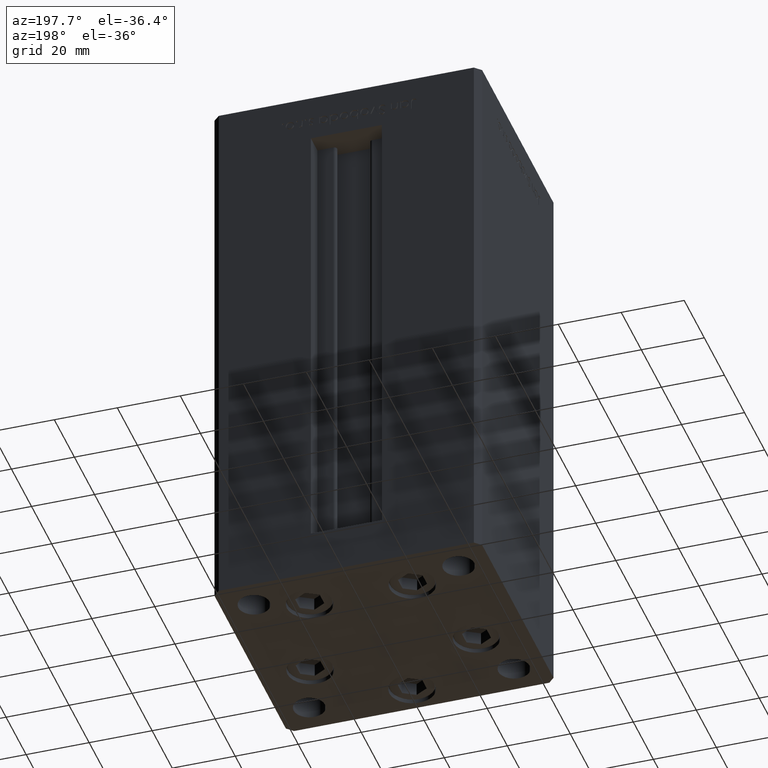
[diagram: clean part render]
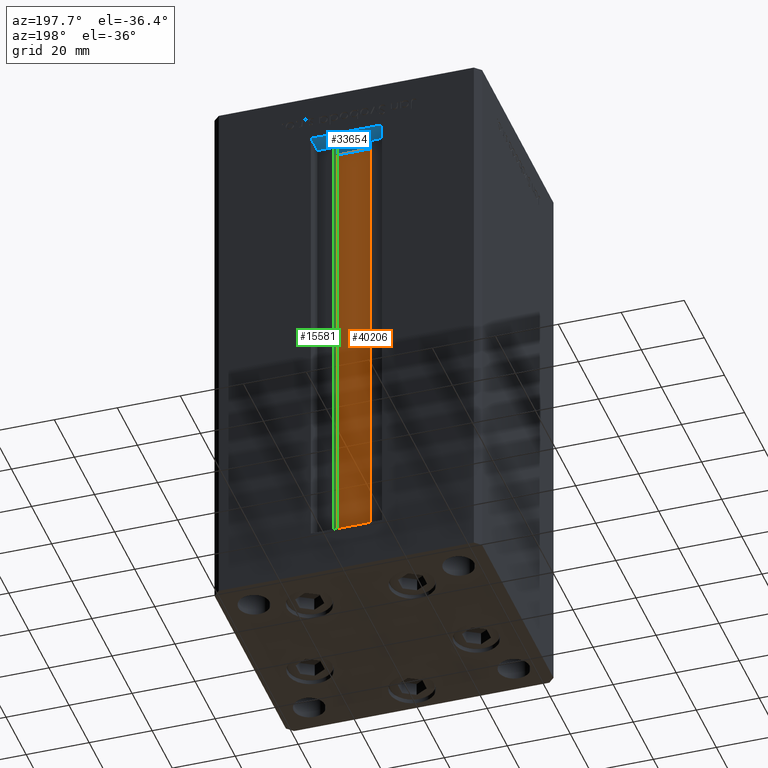
[diagram: same view with three faces highlighted in distinct colors, each labeled with its STEP entity id]
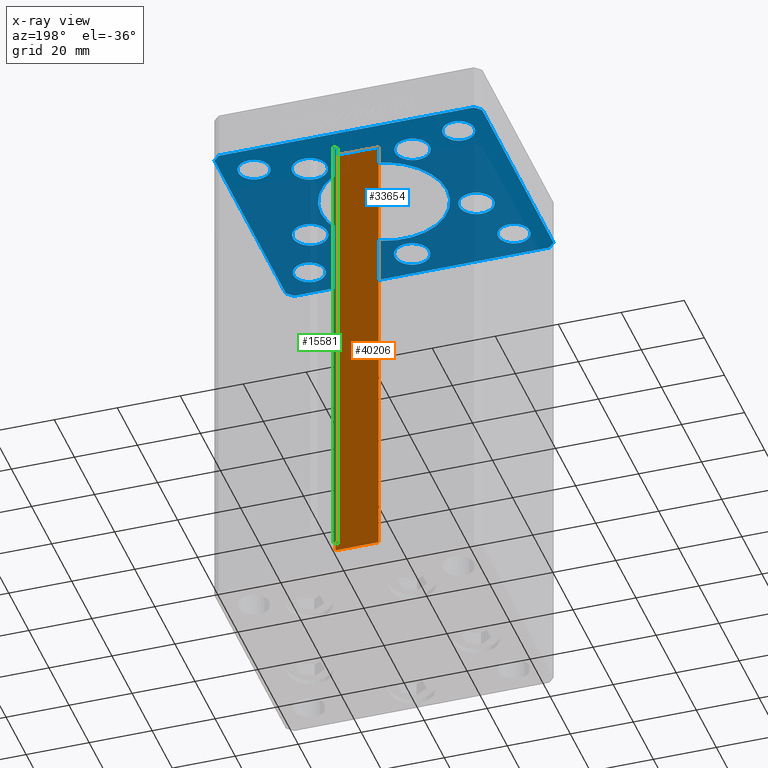
[diagram: x-ray of the same camera — body ghosted, the three highlighted faces saturated]
A machine part, auxiliary view with three faces highlighted in distinct colors.
The next image is the same camera in x-ray (body ghosted, the three faces saturated) — at least one of them is partly hidden behind the body in this view.
Their STEP definitions:

[orange] entity #40206 — the highlighted planar face has unit normal (0, -1, 0).
#550 = CARTESIAN_POINT ( 'NONE',  ( 6.876153656360465938, 26.99999999999986855, 0.000000000000000000 ) ) ;
#930 = DIRECTION ( 'NONE',  ( 0.000000000000000000, -1.000000000000000000, -0.000000000000000000 ) ) ;
#4932 = ORIENTED_EDGE ( 'NONE', *, *, #23216, .T. ) ;
#7508 = LINE ( 'NONE', #31757, #22491 ) ;
#7704 = CARTESIAN_POINT ( 'NONE',  ( -6.876153656360465938, 26.99999999999986855, 0.000000000000000000 ) ) ;
#8113 = EDGE_CURVE ( 'NONE', #16071, #21014, #12171, .T. ) ;
#9243 = EDGE_CURVE ( 'NONE', #10078, #24141, #51427, .T. ) ;
#9538 = EDGE_CURVE ( 'NONE', #21014, #10078, #10812, .T. ) ;
#10078 = VERTEX_POINT ( 'NONE', #38560 ) ;
#10812 = LINE ( 'NONE', #51403, #28955 ) ;
#12171 = LINE ( 'NONE', #550, #25555 ) ;
#14879 = EDGE_LOOP ( 'NONE', ( #35545, #25599, #4932, #32731 ) ) ;
#16071 = VERTEX_POINT ( 'NONE', #7704 ) ;
#20982 = FACE_OUTER_BOUND ( 'NONE', #14879, .T. ) ;
#21014 = VERTEX_POINT ( 'NONE', #33372 ) ;
#22491 = VECTOR ( 'NONE', #42590, 1000.000000000000000 ) ;
#23216 = EDGE_CURVE ( 'NONE', #16071, #24141, #7508, .T. ) ;
#23722 = AXIS2_PLACEMENT_3D ( 'NONE', #40217, #930, #28106 ) ;
#24141 = VERTEX_POINT ( 'NONE', #34369 ) ;
#25555 = VECTOR ( 'NONE', #27983, 1000.000000000000000 ) ;
#25599 = ORIENTED_EDGE ( 'NONE', *, *, #8113, .F. ) ;
#27983 = DIRECTION ( 'NONE',  ( 1.000000000000000000, -0.000000000000000000, -0.000000000000000000 ) ) ;
#28106 = DIRECTION ( 'NONE',  ( 0.000000000000000000, 0.000000000000000000, -1.000000000000000000 ) ) ;
#28955 = VECTOR ( 'NONE', #35835, 1000.000000000000000 ) ;
#29789 = VECTOR ( 'NONE', #39543, 1000.000000000000000 ) ;
#31757 = CARTESIAN_POINT ( 'NONE',  ( -6.876153656360465938, 26.99999999999986855, 0.000000000000000000 ) ) ;
#32731 = ORIENTED_EDGE ( 'NONE', *, *, #9243, .F. ) ;
#33372 = CARTESIAN_POINT ( 'NONE',  ( 6.876153656360465938, 26.99999999999986855, 0.000000000000000000 ) ) ;
#34369 = CARTESIAN_POINT ( 'NONE',  ( -6.876153656360465938, 26.99999999999986855, 148.5000000000000000 ) ) ;
#35545 = ORIENTED_EDGE ( 'NONE', *, *, #9538, .F. ) ;
#35835 = DIRECTION ( 'NONE',  ( -0.000000000000000000, -0.000000000000000000, 1.000000000000000000 ) ) ;
#37055 = PLANE ( 'NONE',  #23722 ) ;
#38560 = CARTESIAN_POINT ( 'NONE',  ( 6.876153656360465938, 26.99999999999986855, 148.5000000000000000 ) ) ;
#39543 = DIRECTION ( 'NONE',  ( -1.000000000000000000, 0.000000000000000000, 0.000000000000000000 ) ) ;
#40206 = ADVANCED_FACE ( 'NONE', ( #20982 ), #37055, .F. ) ;
#40217 = CARTESIAN_POINT ( 'NONE',  ( 6.876153656360465938, 26.99999999999986855, 0.000000000000000000 ) ) ;
#42590 = DIRECTION ( 'NONE',  ( -0.000000000000000000, -0.000000000000000000, 1.000000000000000000 ) ) ;
#43501 = CARTESIAN_POINT ( 'NONE',  ( 0.000000000000000000, 26.99999999999986855, 148.5000000000000000 ) ) ;
#51403 = CARTESIAN_POINT ( 'NONE',  ( 6.876153656360465938, 26.99999999999986855, 0.000000000000000000 ) ) ;
#51427 = LINE ( 'NONE', #43501, #29789 ) ;

[blue] entity #33654 — the highlighted planar face has unit normal (0, 0, 1).
#13 = AXIS2_PLACEMENT_3D ( 'NONE', #50209, #18817, #46498 ) ;
#153 = CARTESIAN_POINT ( 'NONE',  ( -42.50000000000000000, -35.50000000000004263, -15.00000000000000000 ) ) ;
#253 = DIRECTION ( 'NONE',  ( 1.000000000000000000, 1.370645709413773283E-15, 0.000000000000000000 ) ) ;
#422 = CARTESIAN_POINT ( 'NONE',  ( 16.32291334290544071, 22.74999999999999289, -15.00000000000000000 ) ) ;
#657 = CARTESIAN_POINT ( 'NONE',  ( 0.000000000000000000, -28.00000000000000000, -15.00000000000000000 ) ) ;
#835 = EDGE_CURVE ( 'NONE', #2533, #16558, #36095, .T. ) ;
#1100 = AXIS2_PLACEMENT_3D ( 'NONE', #9308, #29602, #41211 ) ;
#1209 = EDGE_CURVE ( 'NONE', #23057, #36490, #37950, .T. ) ;
#1481 = VERTEX_POINT ( 'NONE', #10970 ) ;
#1664 = FACE_BOUND ( 'NONE', #2701, .T. ) ;
#1911 = FACE_BOUND ( 'NONE', #32106, .T. ) ;
#2374 = DIRECTION ( 'NONE',  ( -0.000000000000000000, -0.000000000000000000, -1.000000000000000000 ) ) ;
#2502 = DIRECTION ( 'NONE',  ( 1.000000000000000000, 0.000000000000000000, 0.000000000000000000 ) ) ;
#2533 = VERTEX_POINT ( 'NONE', #16825 ) ;
#2544 = ORIENTED_EDGE ( 'NONE', *, *, #29915, .F. ) ;
#2701 = EDGE_LOOP ( 'NONE', ( #26460, #26804 ) ) ;
#2791 = EDGE_LOOP ( 'NONE', ( #47385, #8597, #2544, #4268, #19667, #31901, #44976, #11356 ) ) ;
#3222 = EDGE_LOOP ( 'NONE', ( #51093, #28229 ) ) ;
#4172 = EDGE_CURVE ( 'NONE', #46750, #14249, #41569, .T. ) ;
#4244 = VERTEX_POINT ( 'NONE', #43354 ) ;
#4268 = ORIENTED_EDGE ( 'NONE', *, *, #8573, .F. ) ;
#4516 = CARTESIAN_POINT ( 'NONE',  ( -27.50000000000000000, -27.50000000000000355, -15.00000000000000000 ) ) ;
#4657 = EDGE_CURVE ( 'NONE', #17549, #47558, #21368, .T. ) ;
#4860 = CARTESIAN_POINT ( 'NONE',  ( 26.39865316429777664, -9.333333333333330373, -15.00000000000000000 ) ) ;
#4938 = LINE ( 'NONE', #28413, #17782 ) ;
#5031 = VERTEX_POINT ( 'NONE', #20735 ) ;
#5037 = AXIS2_PLACEMENT_3D ( 'NONE', #8898, #24731, #24468 ) ;
#5263 = CARTESIAN_POINT ( 'NONE',  ( 5.500000000000000000, -28.00000000000000000, -15.00000000000000000 ) ) ;
#5291 = CARTESIAN_POINT ( 'NONE',  ( -31.89865316429777664, -9.333333333333330373, -15.00000000000000000 ) ) ;
#5357 = AXIS2_PLACEMENT_3D ( 'NONE', #36868, #37127, #33180 ) ;
#5433 = CIRCLE ( 'NONE', #9667, 5.000000000000004441 ) ;
#5651 = VECTOR ( 'NONE', #253, 1000.000000000000000 ) ;
#5867 = DIRECTION ( 'NONE',  ( 0.000000000000000000, 0.000000000000000000, 1.000000000000000000 ) ) ;
#6053 = VERTEX_POINT ( 'NONE', #17520 ) ;
#6165 = EDGE_CURVE ( 'NONE', #19796, #24030, #24642, .T. ) ;
#6302 = DIRECTION ( 'NONE',  ( 0.7071067811865487940, -0.7071067811865463515, 0.000000000000000000 ) ) ;
#6541 = VERTEX_POINT ( 'NONE', #15483 ) ;
#7176 = EDGE_CURVE ( 'NONE', #6541, #17480, #51626, .T. ) ;
#7419 = EDGE_LOOP ( 'NONE', ( #9795, #9439 ) ) ;
#7543 = ORIENTED_EDGE ( 'NONE', *, *, #4657, .F. ) ;
#7600 = EDGE_LOOP ( 'NONE', ( #46618, #48682 ) ) ;
#7911 = CIRCLE ( 'NONE', #5357, 5.000000000000004441 ) ;
#7985 = CARTESIAN_POINT ( 'NONE',  ( -27.50000000000000000, 27.50000000000000711, -15.00000000000000000 ) ) ;
#8573 = EDGE_CURVE ( 'NONE', #51888, #10069, #34678, .T. ) ;
#8597 = ORIENTED_EDGE ( 'NONE', *, *, #42476, .F. ) ;
#8898 = CARTESIAN_POINT ( 'NONE',  ( -32.50000000000000000, -27.50000000000000355, -15.00000000000000000 ) ) ;
#9060 = FACE_BOUND ( 'NONE', #7419, .T. ) ;
#9102 = CARTESIAN_POINT ( 'NONE',  ( 20.00000000000000000, 0.000000000000000000, -15.00000000000000000 ) ) ;
#9200 = VERTEX_POINT ( 'NONE', #5291 ) ;
#9308 = CARTESIAN_POINT ( 'NONE',  ( -32.50000000000000000, -27.50000000000000355, -15.00000000000000000 ) ) ;
#9439 = ORIENTED_EDGE ( 'NONE', *, *, #11946, .F. ) ;
#9612 = EDGE_CURVE ( 'NONE', #14474, #27171, #7911, .T. ) ;
#9667 = AXIS2_PLACEMENT_3D ( 'NONE', #32809, #33071, #29117 ) ;
#9705 = EDGE_CURVE ( 'NONE', #16558, #2533, #13812, .T. ) ;
#9795 = ORIENTED_EDGE ( 'NONE', *, *, #9612, .F. ) ;
#10062 = ORIENTED_EDGE ( 'NONE', *, *, #4172, .F. ) ;
#10069 = VERTEX_POINT ( 'NONE', #22489 ) ;
#10084 = CARTESIAN_POINT ( 'NONE',  ( 21.82291334290544071, 22.74999999999999289, -15.00000000000000000 ) ) ;
#10233 = DIRECTION ( 'NONE',  ( 1.000000000000000000, 0.000000000000000000, 0.000000000000000000 ) ) ;
#10557 = CARTESIAN_POINT ( 'NONE',  ( 32.50000000000000000, -27.50000000000000355, -15.00000000000000000 ) ) ;
#10860 = VECTOR ( 'NONE', #6302, 1000.000000000000000 ) ;
#10929 = LINE ( 'NONE', #38608, #41038 ) ;
#10970 = CARTESIAN_POINT ( 'NONE',  ( 27.50000000000000355, 27.49999999999999645, -15.00000000000000000 ) ) ;
#11021 = DIRECTION ( 'NONE',  ( -1.000000000000000000, 0.000000000000000000, 0.000000000000000000 ) ) ;
#11356 = ORIENTED_EDGE ( 'NONE', *, *, #18781, .F. ) ;
#11376 = CARTESIAN_POINT ( 'NONE',  ( -40.50000000000000711, -37.50000000000003553, -15.00000000000000000 ) ) ;
#11480 = VECTOR ( 'NONE', #45999, 1000.000000000000114 ) ;
#11505 = ORIENTED_EDGE ( 'NONE', *, *, #41425, .F. ) ;
#11846 = CARTESIAN_POINT ( 'NONE',  ( -42.50000000000000711, 35.50000000000000000, -15.00000000000000000 ) ) ;
#11946 = EDGE_CURVE ( 'NONE', #27171, #14474, #5433, .T. ) ;
#11970 = DIRECTION ( 'NONE',  ( 0.000000000000000000, -0.000000000000000000, -1.000000000000000000 ) ) ;
#12042 = DIRECTION ( 'NONE',  ( 1.000000000000000000, 0.000000000000000000, 0.000000000000000000 ) ) ;
#12274 = EDGE_CURVE ( 'NONE', #16624, #5031, #39116, .T. ) ;
#12810 = AXIS2_PLACEMENT_3D ( 'NONE', #39403, #47053, #2502 ) ;
#12882 = LINE ( 'NONE', #11846, #46523 ) ;
#12980 = CARTESIAN_POINT ( 'NONE',  ( 27.50000000000000355, -27.50000000000000355, -15.00000000000000000 ) ) ;
#13090 = DIRECTION ( 'NONE',  ( 0.000000000000000000, -0.000000000000000000, -1.000000000000000000 ) ) ;
#13546 = FACE_BOUND ( 'NONE', #35932, .T. ) ;
#13670 = CARTESIAN_POINT ( 'NONE',  ( 0.000000000000000000, 0.000000000000000000, -15.00000000000000000 ) ) ;
#13696 = DIRECTION ( 'NONE',  ( 0.000000000000000000, -0.000000000000000000, -1.000000000000000000 ) ) ;
#13812 = CIRCLE ( 'NONE', #50012, 20.00000000000000000 ) ;
#13845 = LINE ( 'NONE', #41777, #11480 ) ;
#14065 = DIRECTION ( 'NONE',  ( -0.000000000000000000, 0.000000000000000000, 1.000000000000000000 ) ) ;
#14147 = CIRCLE ( 'NONE', #44413, 4.999999999999997335 ) ;
#14249 = VERTEX_POINT ( 'NONE', #48910 ) ;
#14474 = VERTEX_POINT ( 'NONE', #7985 ) ;
#14497 = ORIENTED_EDGE ( 'NONE', *, *, #42416, .T. ) ;
#14592 = DIRECTION ( 'NONE',  ( 0.000000000000000000, -0.000000000000000000, -1.000000000000000000 ) ) ;
#14751 = EDGE_LOOP ( 'NONE', ( #44851, #19730 ) ) ;
#15197 = AXIS2_PLACEMENT_3D ( 'NONE', #47125, #27611, #43684 ) ;
#15424 = CARTESIAN_POINT ( 'NONE',  ( 37.50000000000000000, 27.49999999999999645, -15.00000000000000000 ) ) ;
#15483 = CARTESIAN_POINT ( 'NONE',  ( -37.50000000000000711, -27.50000000000000355, -15.00000000000000000 ) ) ;
#15547 = CARTESIAN_POINT ( 'NONE',  ( 32.50000000000000000, 27.49999999999999645, -15.00000000000000000 ) ) ;
#15837 = LINE ( 'NONE', #11376, #5651 ) ;
#15971 = DIRECTION ( 'NONE',  ( 0.000000000000000000, -0.000000000000000000, -1.000000000000000000 ) ) ;
#16558 = VERTEX_POINT ( 'NONE', #9102 ) ;
#16624 = VERTEX_POINT ( 'NONE', #42286 ) ;
#16643 = EDGE_CURVE ( 'NONE', #6053, #4244, #13845, .T. ) ;
#16825 = CARTESIAN_POINT ( 'NONE',  ( -20.00000000000000000, 2.449293598294706513E-15, -15.00000000000000000 ) ) ;
#17066 = AXIS2_PLACEMENT_3D ( 'NONE', #15547, #5867, #18264 ) ;
#17129 = DIRECTION ( 'NONE',  ( 1.000000000000000000, 0.000000000000000000, 0.000000000000000000 ) ) ;
#17480 = VERTEX_POINT ( 'NONE', #4516 ) ;
#17520 = CARTESIAN_POINT ( 'NONE',  ( 40.50000000000001421, -37.49999999999992184, -15.00000000000000000 ) ) ;
#17549 = VERTEX_POINT ( 'NONE', #12980 ) ;
#17782 = VECTOR ( 'NONE', #45286, 1000.000000000000000 ) ;
#17829 = AXIS2_PLACEMENT_3D ( 'NONE', #422, #47893, #12042 ) ;
#18014 = FACE_BOUND ( 'NONE', #3222, .T. ) ;
#18238 = DIRECTION ( 'NONE',  ( 1.000000000000000000, 0.000000000000000000, 0.000000000000000000 ) ) ;
#18264 = DIRECTION ( 'NONE',  ( 1.000000000000000000, 0.000000000000000000, 0.000000000000000000 ) ) ;
#18715 = AXIS2_PLACEMENT_3D ( 'NONE', #28820, #11970, #48860 ) ;
#18781 = EDGE_CURVE ( 'NONE', #36490, #6053, #15837, .T. ) ;
#18817 = DIRECTION ( 'NONE',  ( 0.000000000000000000, -0.000000000000000000, -1.000000000000000000 ) ) ;
#18867 = CARTESIAN_POINT ( 'NONE',  ( 40.50000000000000711, 37.50000000000000711, -15.00000000000000000 ) ) ;
#19667 = ORIENTED_EDGE ( 'NONE', *, *, #36257, .F. ) ;
#19730 = ORIENTED_EDGE ( 'NONE', *, *, #35368, .F. ) ;
#19796 = VERTEX_POINT ( 'NONE', #10084 ) ;
#19983 = AXIS2_PLACEMENT_3D ( 'NONE', #25304, #13696, #17129 ) ;
#20139 = EDGE_CURVE ( 'NONE', #4244, #33401, #10929, .T. ) ;
#20455 = CARTESIAN_POINT ( 'NONE',  ( -16.32291334290544071, 22.74999999999999289, -15.00000000000000000 ) ) ;
#20694 = DIRECTION ( 'NONE',  ( 0.000000000000000000, -0.000000000000000000, -1.000000000000000000 ) ) ;
#20707 = DIRECTION ( 'NONE',  ( 1.000000000000000000, 0.000000000000000000, 0.000000000000000000 ) ) ;
#20735 = CARTESIAN_POINT ( 'NONE',  ( 31.89865316429777664, -9.333333333333330373, -15.00000000000000000 ) ) ;
#21218 = ORIENTED_EDGE ( 'NONE', *, *, #41338, .F. ) ;
#21368 = CIRCLE ( 'NONE', #33148, 4.999999999999997335 ) ;
#22192 = CARTESIAN_POINT ( 'NONE',  ( 0.000000000000000000, 0.000000000000000000, -15.00000000000000000 ) ) ;
#22229 = FACE_BOUND ( 'NONE', #47963, .T. ) ;
#22489 = CARTESIAN_POINT ( 'NONE',  ( -40.50000000000000000, 37.49999999999997158, -15.00000000000000000 ) ) ;
#22873 = CIRCLE ( 'NONE', #17829, 5.499999999999998224 ) ;
#23057 = VERTEX_POINT ( 'NONE', #153 ) ;
#23588 = ORIENTED_EDGE ( 'NONE', *, *, #25874, .F. ) ;
#24030 = VERTEX_POINT ( 'NONE', #44406 ) ;
#24281 = EDGE_LOOP ( 'NONE', ( #23588, #7543 ) ) ;
#24468 = DIRECTION ( 'NONE',  ( 1.000000000000000000, 0.000000000000000000, 0.000000000000000000 ) ) ;
#24642 = CIRCLE ( 'NONE', #38116, 5.499999999999998224 ) ;
#24731 = DIRECTION ( 'NONE',  ( 0.000000000000000000, 0.000000000000000000, 1.000000000000000000 ) ) ;
#24799 = EDGE_CURVE ( 'NONE', #9200, #41652, #43547, .T. ) ;
#25304 = CARTESIAN_POINT ( 'NONE',  ( -26.39865316429777664, -9.333333333333330373, -15.00000000000000000 ) ) ;
#25605 = DIRECTION ( 'NONE',  ( -1.000000000000000000, 0.000000000000000000, 0.000000000000000000 ) ) ;
#25874 = EDGE_CURVE ( 'NONE', #47558, #17549, #14147, .T. ) ;
#26094 = CARTESIAN_POINT ( 'NONE',  ( -42.50000000000000000, -35.50000000000004263, -15.00000000000000000 ) ) ;
#26121 = EDGE_LOOP ( 'NONE', ( #29695, #14497 ) ) ;
#26308 = DIRECTION ( 'NONE',  ( 0.000000000000000000, -0.000000000000000000, -1.000000000000000000 ) ) ;
#26460 = ORIENTED_EDGE ( 'NONE', *, *, #9705, .F. ) ;
#26750 = DIRECTION ( 'NONE',  ( 9.773090005503145261E-17, 1.000000000000000000, 0.000000000000000000 ) ) ;
#26804 = ORIENTED_EDGE ( 'NONE', *, *, #835, .F. ) ;
#26861 = AXIS2_PLACEMENT_3D ( 'NONE', #22192, #38272, #18238 ) ;
#27001 = LINE ( 'NONE', #43072, #43703 ) ;
#27171 = VERTEX_POINT ( 'NONE', #40505 ) ;
#27611 = DIRECTION ( 'NONE',  ( 0.000000000000000000, 0.000000000000000000, 1.000000000000000000 ) ) ;
#28186 = ORIENTED_EDGE ( 'NONE', *, *, #12274, .F. ) ;
#28229 = ORIENTED_EDGE ( 'NONE', *, *, #38186, .F. ) ;
#28413 = CARTESIAN_POINT ( 'NONE',  ( 42.50000000000001421, 35.50000000000002132, -15.00000000000000000 ) ) ;
#28820 = CARTESIAN_POINT ( 'NONE',  ( -26.39865316429777664, -9.333333333333330373, -15.00000000000000000 ) ) ;
#29051 = CARTESIAN_POINT ( 'NONE',  ( -10.82291334290544249, 22.74999999999999289, -15.00000000000000000 ) ) ;
#29117 = DIRECTION ( 'NONE',  ( -1.000000000000000000, 0.000000000000000000, 0.000000000000000000 ) ) ;
#29602 = DIRECTION ( 'NONE',  ( 0.000000000000000000, 0.000000000000000000, 1.000000000000000000 ) ) ;
#29695 = ORIENTED_EDGE ( 'NONE', *, *, #33252, .T. ) ;
#29915 = EDGE_CURVE ( 'NONE', #10069, #38755, #27001, .T. ) ;
#29997 = DIRECTION ( 'NONE',  ( 1.000000000000000000, 0.000000000000000000, 0.000000000000000000 ) ) ;
#30134 = DIRECTION ( 'NONE',  ( 1.000000000000000000, 0.000000000000000000, 0.000000000000000000 ) ) ;
#31208 = CARTESIAN_POINT ( 'NONE',  ( -40.50000000000000711, -37.50000000000003553, -15.00000000000000000 ) ) ;
#31387 = CIRCLE ( 'NONE', #17066, 4.999999999999997335 ) ;
#31560 = AXIS2_PLACEMENT_3D ( 'NONE', #4860, #20694, #37032 ) ;
#31901 = ORIENTED_EDGE ( 'NONE', *, *, #20139, .F. ) ;
#32106 = EDGE_LOOP ( 'NONE', ( #11505, #39046 ) ) ;
#32297 = EDGE_CURVE ( 'NONE', #17480, #6541, #32826, .T. ) ;
#32809 = CARTESIAN_POINT ( 'NONE',  ( -32.50000000000000000, 27.50000000000000711, -15.00000000000000000 ) ) ;
#32826 = CIRCLE ( 'NONE', #5037, 5.000000000000000888 ) ;
#33071 = DIRECTION ( 'NONE',  ( -0.000000000000000000, -0.000000000000000000, -1.000000000000000000 ) ) ;
#33148 = AXIS2_PLACEMENT_3D ( 'NONE', #38948, #50836, #11021 ) ;
#33180 = DIRECTION ( 'NONE',  ( -1.000000000000000000, 0.000000000000000000, 0.000000000000000000 ) ) ;
#33252 = EDGE_CURVE ( 'NONE', #38507, #1481, #37910, .T. ) ;
#33401 = VERTEX_POINT ( 'NONE', #42062 ) ;
#33654 = ADVANCED_FACE ( 'NONE', ( #1664, #1911, #37262, #22229, #18014, #13546, #34093, #49909, #45694, #9060, #41222 ), #45445, .F. ) ;
#33953 = CARTESIAN_POINT ( 'NONE',  ( 26.39865316429777664, -9.333333333333330373, -15.00000000000000000 ) ) ;
#34027 = ORIENTED_EDGE ( 'NONE', *, *, #40808, .F. ) ;
#34093 = FACE_BOUND ( 'NONE', #26121, .T. ) ;
#34589 = CIRCLE ( 'NONE', #46370, 5.500000000000000000 ) ;
#34678 = LINE ( 'NONE', #18867, #41528 ) ;
#34745 = EDGE_CURVE ( 'NONE', #39648, #43683, #43800, .T. ) ;
#35368 = EDGE_CURVE ( 'NONE', #43683, #39648, #34589, .T. ) ;
#35932 = EDGE_LOOP ( 'NONE', ( #10062, #21218 ) ) ;
#36095 = CIRCLE ( 'NONE', #26861, 20.00000000000000000 ) ;
#36257 = EDGE_CURVE ( 'NONE', #33401, #51888, #4938, .T. ) ;
#36490 = VERTEX_POINT ( 'NONE', #31208 ) ;
#36540 = DIRECTION ( 'NONE',  ( 1.000000000000000000, 0.000000000000000000, 0.000000000000000000 ) ) ;
#36868 = CARTESIAN_POINT ( 'NONE',  ( -32.50000000000000000, 27.50000000000000711, -15.00000000000000000 ) ) ;
#36870 = DIRECTION ( 'NONE',  ( 9.773090005503134168E-17, -1.000000000000000000, 0.000000000000000000 ) ) ;
#37032 = DIRECTION ( 'NONE',  ( 1.000000000000000000, 0.000000000000000000, 0.000000000000000000 ) ) ;
#37127 = DIRECTION ( 'NONE',  ( -0.000000000000000000, -0.000000000000000000, -1.000000000000000000 ) ) ;
#37262 = FACE_BOUND ( 'NONE', #14751, .T. ) ;
#37910 = CIRCLE ( 'NONE', #15197, 4.999999999999997335 ) ;
#37950 = LINE ( 'NONE', #26094, #10860 ) ;
#38116 = AXIS2_PLACEMENT_3D ( 'NONE', #50706, #14592, #50975 ) ;
#38173 = DIRECTION ( 'NONE',  ( 0.000000000000000000, -0.000000000000000000, -1.000000000000000000 ) ) ;
#38186 = EDGE_CURVE ( 'NONE', #24030, #19796, #22873, .T. ) ;
#38272 = DIRECTION ( 'NONE',  ( 0.000000000000000000, -0.000000000000000000, -1.000000000000000000 ) ) ;
#38507 = VERTEX_POINT ( 'NONE', #15424 ) ;
#38608 = CARTESIAN_POINT ( 'NONE',  ( 42.50000000000000711, -35.49999999999992895, -15.00000000000000000 ) ) ;
#38755 = VERTEX_POINT ( 'NONE', #43747 ) ;
#38948 = CARTESIAN_POINT ( 'NONE',  ( 32.50000000000000000, -27.50000000000000355, -15.00000000000000000 ) ) ;
#39046 = ORIENTED_EDGE ( 'NONE', *, *, #24799, .F. ) ;
#39116 = CIRCLE ( 'NONE', #31560, 5.499999999999998224 ) ;
#39403 = CARTESIAN_POINT ( 'NONE',  ( -16.32291334290544071, 22.74999999999999289, -15.00000000000000000 ) ) ;
#39648 = VERTEX_POINT ( 'NONE', #5263 ) ;
#39734 = AXIS2_PLACEMENT_3D ( 'NONE', #33953, #26308, #29997 ) ;
#40505 = CARTESIAN_POINT ( 'NONE',  ( -37.50000000000000711, 27.50000000000000711, -15.00000000000000000 ) ) ;
#40700 = AXIS2_PLACEMENT_3D ( 'NONE', #20455, #13090, #36540 ) ;
#40808 = EDGE_CURVE ( 'NONE', #5031, #16624, #43952, .T. ) ;
#41038 = VECTOR ( 'NONE', #26750, 1000.000000000000000 ) ;
#41211 = DIRECTION ( 'NONE',  ( 1.000000000000000000, 0.000000000000000000, 0.000000000000000000 ) ) ;
#41222 = FACE_BOUND ( 'NONE', #24281, .T. ) ;
#41338 = EDGE_CURVE ( 'NONE', #14249, #46750, #42303, .T. ) ;
#41425 = EDGE_CURVE ( 'NONE', #41652, #9200, #42262, .T. ) ;
#41528 = VECTOR ( 'NONE', #47321, 1000.000000000000000 ) ;
#41569 = CIRCLE ( 'NONE', #40700, 5.500000000000000000 ) ;
#41652 = VERTEX_POINT ( 'NONE', #51726 ) ;
#41777 = CARTESIAN_POINT ( 'NONE',  ( 40.50000000000001421, -37.49999999999992184, -15.00000000000000000 ) ) ;
#42062 = CARTESIAN_POINT ( 'NONE',  ( 42.50000000000001421, 35.50000000000002132, -15.00000000000000000 ) ) ;
#42262 = CIRCLE ( 'NONE', #18715, 5.499999999999998224 ) ;
#42286 = CARTESIAN_POINT ( 'NONE',  ( 20.89865316429778019, -9.333333333333330373, -15.00000000000000000 ) ) ;
#42303 = CIRCLE ( 'NONE', #12810, 5.500000000000000000 ) ;
#42416 = EDGE_CURVE ( 'NONE', #1481, #38507, #31387, .T. ) ;
#42476 = EDGE_CURVE ( 'NONE', #38755, #23057, #12882, .T. ) ;
#43072 = CARTESIAN_POINT ( 'NONE',  ( -40.50000000000000000, 37.49999999999997158, -15.00000000000000000 ) ) ;
#43354 = CARTESIAN_POINT ( 'NONE',  ( 42.50000000000000711, -35.49999999999992895, -15.00000000000000000 ) ) ;
#43547 = CIRCLE ( 'NONE', #19983, 5.499999999999998224 ) ;
#43683 = VERTEX_POINT ( 'NONE', #44270 ) ;
#43684 = DIRECTION ( 'NONE',  ( 1.000000000000000000, 0.000000000000000000, 0.000000000000000000 ) ) ;
#43703 = VECTOR ( 'NONE', #51261, 1000.000000000000000 ) ;
#43747 = CARTESIAN_POINT ( 'NONE',  ( -42.50000000000000711, 35.50000000000000000, -15.00000000000000000 ) ) ;
#43800 = CIRCLE ( 'NONE', #13, 5.500000000000000000 ) ;
#43952 = CIRCLE ( 'NONE', #39734, 5.499999999999998224 ) ;
#44270 = CARTESIAN_POINT ( 'NONE',  ( -5.500000000000000000, -28.00000000000000000, -15.00000000000000000 ) ) ;
#44406 = CARTESIAN_POINT ( 'NONE',  ( 10.82291334290544604, 22.74999999999999289, -15.00000000000000000 ) ) ;
#44413 = AXIS2_PLACEMENT_3D ( 'NONE', #10557, #2374, #25605 ) ;
#44851 = ORIENTED_EDGE ( 'NONE', *, *, #34745, .F. ) ;
#44976 = ORIENTED_EDGE ( 'NONE', *, *, #16643, .F. ) ;
#45286 = DIRECTION ( 'NONE',  ( -0.7071067811865524577, 0.7071067811865426878, 0.000000000000000000 ) ) ;
#45445 = PLANE ( 'NONE',  #49731 ) ;
#45694 = FACE_OUTER_BOUND ( 'NONE', #2791, .T. ) ;
#45999 = DIRECTION ( 'NONE',  ( 0.7071067811865474617, 0.7071067811865474617, 0.000000000000000000 ) ) ;
#46370 = AXIS2_PLACEMENT_3D ( 'NONE', #657, #15971, #20707 ) ;
#46498 = DIRECTION ( 'NONE',  ( 1.000000000000000000, 0.000000000000000000, 0.000000000000000000 ) ) ;
#46523 = VECTOR ( 'NONE', #36870, 1000.000000000000000 ) ;
#46618 = ORIENTED_EDGE ( 'NONE', *, *, #32297, .T. ) ;
#46750 = VERTEX_POINT ( 'NONE', #29051 ) ;
#47053 = DIRECTION ( 'NONE',  ( 0.000000000000000000, -0.000000000000000000, -1.000000000000000000 ) ) ;
#47125 = CARTESIAN_POINT ( 'NONE',  ( 32.50000000000000000, 27.49999999999999645, -15.00000000000000000 ) ) ;
#47321 = DIRECTION ( 'NONE',  ( -1.000000000000000000, -4.283267841918041508E-16, 0.000000000000000000 ) ) ;
#47385 = ORIENTED_EDGE ( 'NONE', *, *, #1209, .F. ) ;
#47558 = VERTEX_POINT ( 'NONE', #50292 ) ;
#47893 = DIRECTION ( 'NONE',  ( 0.000000000000000000, -0.000000000000000000, -1.000000000000000000 ) ) ;
#47963 = EDGE_LOOP ( 'NONE', ( #34027, #28186 ) ) ;
#48682 = ORIENTED_EDGE ( 'NONE', *, *, #7176, .T. ) ;
#48860 = DIRECTION ( 'NONE',  ( 1.000000000000000000, 0.000000000000000000, 0.000000000000000000 ) ) ;
#48910 = CARTESIAN_POINT ( 'NONE',  ( -21.82291334290544071, 22.74999999999999289, -15.00000000000000000 ) ) ;
#49731 = AXIS2_PLACEMENT_3D ( 'NONE', #50180, #14065, #30134 ) ;
#49909 = FACE_BOUND ( 'NONE', #7600, .T. ) ;
#50012 = AXIS2_PLACEMENT_3D ( 'NONE', #13670, #38173, #10233 ) ;
#50180 = CARTESIAN_POINT ( 'NONE',  ( 0.000000000000000000, 0.000000000000000000, -15.00000000000000000 ) ) ;
#50209 = CARTESIAN_POINT ( 'NONE',  ( 0.000000000000000000, -28.00000000000000000, -15.00000000000000000 ) ) ;
#50292 = CARTESIAN_POINT ( 'NONE',  ( 37.50000000000000000, -27.50000000000000355, -15.00000000000000000 ) ) ;
#50706 = CARTESIAN_POINT ( 'NONE',  ( 16.32291334290544071, 22.74999999999999289, -15.00000000000000000 ) ) ;
#50836 = DIRECTION ( 'NONE',  ( -0.000000000000000000, -0.000000000000000000, -1.000000000000000000 ) ) ;
#50975 = DIRECTION ( 'NONE',  ( 1.000000000000000000, 0.000000000000000000, 0.000000000000000000 ) ) ;
#51093 = ORIENTED_EDGE ( 'NONE', *, *, #6165, .F. ) ;
#51261 = DIRECTION ( 'NONE',  ( -0.7071067811865536790, -0.7071067811865414665, 0.000000000000000000 ) ) ;
#51556 = CARTESIAN_POINT ( 'NONE',  ( 40.50000000000000711, 37.50000000000000711, -15.00000000000000000 ) ) ;
#51626 = CIRCLE ( 'NONE', #1100, 5.000000000000000888 ) ;
#51726 = CARTESIAN_POINT ( 'NONE',  ( -20.89865316429778019, -9.333333333333330373, -15.00000000000000000 ) ) ;
#51888 = VERTEX_POINT ( 'NONE', #51556 ) ;

[green] entity #15581 — the highlighted cylindrical surface (edge-blend (fillet) strip) has radius 0.9333 mm, axis along (0, 0, 1).
#977 = EDGE_CURVE ( 'NONE', #20078, #8104, #2449, .T. ) ;
#2449 = CIRCLE ( 'NONE', #3275, 0.9333333333340015914 ) ;
#2989 = AXIS2_PLACEMENT_3D ( 'NONE', #3114, #15512, #30807 ) ;
#3114 = CARTESIAN_POINT ( 'NONE',  ( 6.183333333333999704, 30.06666666666599141, 0.000000000000000000 ) ) ;
#3275 = AXIS2_PLACEMENT_3D ( 'NONE', #8172, #39804, #24269 ) ;
#4032 = DIRECTION ( 'NONE',  ( -0.000000000000000000, -0.000000000000000000, 1.000000000000000000 ) ) ;
#7150 = EDGE_CURVE ( 'NONE', #25528, #52087, #26371, .T. ) ;
#7734 = LINE ( 'NONE', #16448, #21050 ) ;
#8104 = VERTEX_POINT ( 'NONE', #20329 ) ;
#8172 = CARTESIAN_POINT ( 'NONE',  ( 6.183333333333999704, 30.06666666666599141, 148.5000000000000000 ) ) ;
#10150 = CARTESIAN_POINT ( 'NONE',  ( 5.375042956467944499, 29.59999999999899245, 148.5000000000000000 ) ) ;
#12253 = EDGE_LOOP ( 'NONE', ( #40373, #21910, #45094, #30780 ) ) ;
#14055 = DIRECTION ( 'NONE',  ( 1.000000000000000000, 0.000000000000000000, 0.000000000000000000 ) ) ;
#14070 = VECTOR ( 'NONE', #15469, 1000.000000000000000 ) ;
#15469 = DIRECTION ( 'NONE',  ( -0.000000000000000000, -0.000000000000000000, 1.000000000000000000 ) ) ;
#15512 = DIRECTION ( 'NONE',  ( -0.000000000000000000, -0.000000000000000000, 1.000000000000000000 ) ) ;
#15581 = ADVANCED_FACE ( 'NONE', ( #50857 ), #26604, .T. ) ;
#16448 = CARTESIAN_POINT ( 'NONE',  ( 6.183333333333999704, 30.99999999999999289, 0.000000000000000000 ) ) ;
#19273 = EDGE_CURVE ( 'NONE', #25528, #20078, #47105, .T. ) ;
#19276 = CARTESIAN_POINT ( 'NONE',  ( 5.375042956467943611, 29.59999999999899245, 0.000000000000000000 ) ) ;
#20078 = VERTEX_POINT ( 'NONE', #10150 ) ;
#20329 = CARTESIAN_POINT ( 'NONE',  ( 6.183333333333999704, 30.99999999999999289, 148.5000000000000000 ) ) ;
#20814 = CARTESIAN_POINT ( 'NONE',  ( 6.183333333333999704, 30.99999999999999289, 0.000000000000000000 ) ) ;
#20919 = DIRECTION ( 'NONE',  ( -0.000000000000000000, -0.000000000000000000, -1.000000000000000000 ) ) ;
#21050 = VECTOR ( 'NONE', #4032, 1000.000000000000000 ) ;
#21910 = ORIENTED_EDGE ( 'NONE', *, *, #7150, .F. ) ;
#24269 = DIRECTION ( 'NONE',  ( 1.000000000000000000, 0.000000000000000000, 0.000000000000000000 ) ) ;
#25528 = VERTEX_POINT ( 'NONE', #19276 ) ;
#26371 = CIRCLE ( 'NONE', #49929, 0.9333333333340015914 ) ;
#26604 = CYLINDRICAL_SURFACE ( 'NONE', #2989, 0.9333333333340015914 ) ;
#30780 = ORIENTED_EDGE ( 'NONE', *, *, #977, .T. ) ;
#30807 = DIRECTION ( 'NONE',  ( 1.000000000000000000, 0.000000000000000000, 0.000000000000000000 ) ) ;
#32842 = EDGE_CURVE ( 'NONE', #52087, #8104, #7734, .T. ) ;
#36009 = CARTESIAN_POINT ( 'NONE',  ( 5.375042956467943611, 29.59999999999899245, 0.000000000000000000 ) ) ;
#39804 = DIRECTION ( 'NONE',  ( 0.000000000000000000, 0.000000000000000000, -1.000000000000000000 ) ) ;
#40373 = ORIENTED_EDGE ( 'NONE', *, *, #32842, .F. ) ;
#45094 = ORIENTED_EDGE ( 'NONE', *, *, #19273, .T. ) ;
#47105 = LINE ( 'NONE', #36009, #14070 ) ;
#49900 = CARTESIAN_POINT ( 'NONE',  ( 6.183333333333999704, 30.06666666666599141, 0.000000000000000000 ) ) ;
#49929 = AXIS2_PLACEMENT_3D ( 'NONE', #49900, #20919, #14055 ) ;
#50857 = FACE_OUTER_BOUND ( 'NONE', #12253, .T. ) ;
#52087 = VERTEX_POINT ( 'NONE', #20814 ) ;